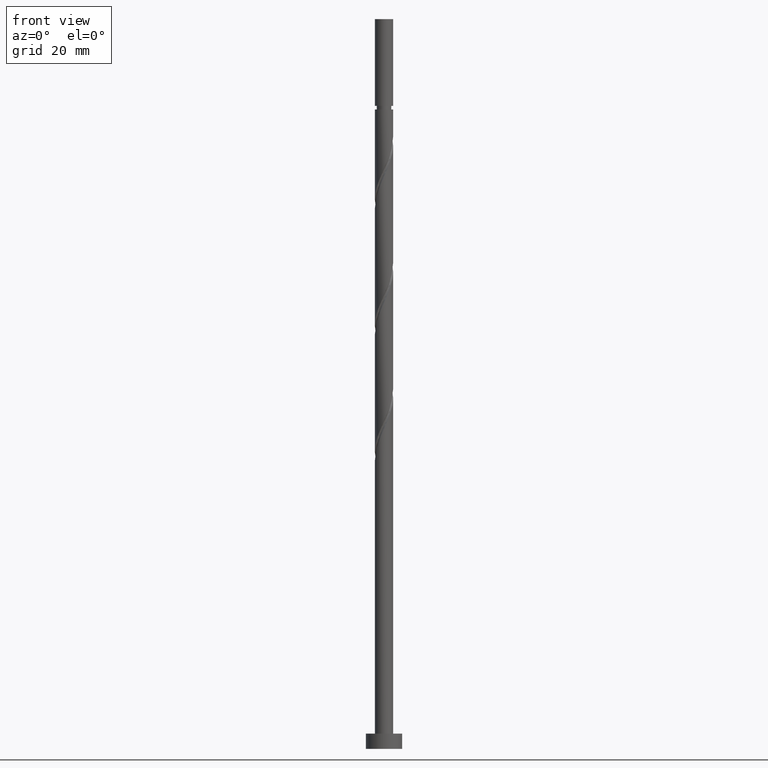
[diagram: clean part render]
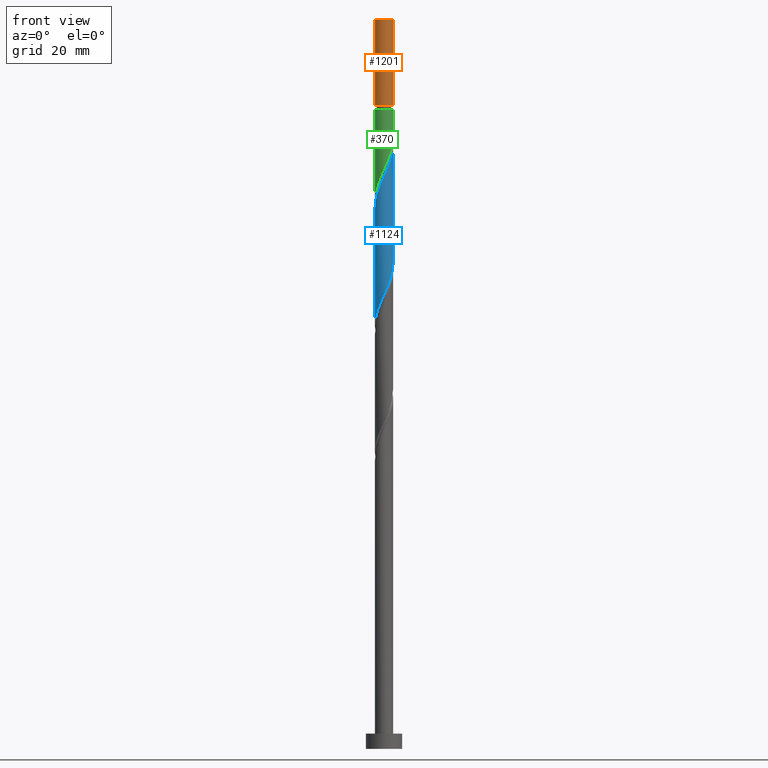
[diagram: same view with three faces highlighted in distinct colors, each labeled with its STEP entity id]
A machine part, front view with three faces highlighted in distinct colors.
Their STEP definitions:

[orange] entity #1201 — the highlighted cylindrical surface (edge-blend (fillet) strip) has radius 3 mm, axis along (-0, -0, -1).
#16 = EDGE_CURVE ( 'NONE', #412, #477, #1381, .T. ) ;
#38 = CARTESIAN_POINT ( 'NONE',  ( 2.999999999999987121, 3.673940397442051486E-16, 212.3750485588680306 ) ) ;
#115 = CARTESIAN_POINT ( 'NONE',  ( 3.000000000000000444, 3.673940397442060361E-16, 241.0000000000000000 ) ) ;
#125 = AXIS2_PLACEMENT_3D ( 'NONE', #269, #1414, #984 ) ;
#166 = LINE ( 'NONE', #565, #1184 ) ;
#213 = DIRECTION ( 'NONE',  ( 1.000000000000000000, 0.000000000000000000, 0.000000000000000000 ) ) ;
#217 = ORIENTED_EDGE ( 'NONE', *, *, #741, .F. ) ;
#258 = AXIS2_PLACEMENT_3D ( 'NONE', #1670, #263, #1799 ) ;
#263 = DIRECTION ( 'NONE',  ( -0.000000000000000000, -0.000000000000000000, -1.000000000000000000 ) ) ;
#268 = EDGE_CURVE ( 'NONE', #477, #1653, #1720, .T. ) ;
#269 = CARTESIAN_POINT ( 'NONE',  ( 0.000000000000000000, 0.000000000000000000, 212.3750485588680306 ) ) ;
#277 = ORIENTED_EDGE ( 'NONE', *, *, #1528, .T. ) ;
#364 = VECTOR ( 'NONE', #1802, 1000.000000000000000 ) ;
#412 = VERTEX_POINT ( 'NONE', #758 ) ;
#477 = VERTEX_POINT ( 'NONE', #38 ) ;
#565 = CARTESIAN_POINT ( 'NONE',  ( -3.000000000000000444, 0.000000000000000000, 241.0000000000000000 ) ) ;
#741 = EDGE_CURVE ( 'NONE', #1344, #412, #1241, .T. ) ;
#758 = CARTESIAN_POINT ( 'NONE',  ( 3.000000000000000444, 3.673940397442060361E-16, 241.0000000000000000 ) ) ;
#893 = DIRECTION ( 'NONE',  ( -0.000000000000000000, -0.000000000000000000, -1.000000000000000000 ) ) ;
#952 = CYLINDRICAL_SURFACE ( 'NONE', #258, 3.000000000000000444 ) ;
#984 = DIRECTION ( 'NONE',  ( -1.000000000000000000, 0.000000000000000000, 0.000000000000000000 ) ) ;
#1037 = AXIS2_PLACEMENT_3D ( 'NONE', #1207, #1493, #213 ) ;
#1184 = VECTOR ( 'NONE', #893, 1000.000000000000000 ) ;
#1201 = ADVANCED_FACE ( 'NONE', ( #1652 ), #952, .T. ) ;
#1202 = CARTESIAN_POINT ( 'NONE',  ( -2.999999999999987121, 0.000000000000000000, 212.3750485588680306 ) ) ;
#1207 = CARTESIAN_POINT ( 'NONE',  ( 0.000000000000000000, 0.000000000000000000, 241.0000000000000000 ) ) ;
#1241 = CIRCLE ( 'NONE', #1037, 3.000000000000000444 ) ;
#1344 = VERTEX_POINT ( 'NONE', #1509 ) ;
#1381 = LINE ( 'NONE', #115, #364 ) ;
#1414 = DIRECTION ( 'NONE',  ( -0.000000000000000000, -0.000000000000000000, -1.000000000000000000 ) ) ;
#1493 = DIRECTION ( 'NONE',  ( 0.000000000000000000, 0.000000000000000000, 1.000000000000000000 ) ) ;
#1509 = CARTESIAN_POINT ( 'NONE',  ( -3.000000000000000444, 0.000000000000000000, 241.0000000000000000 ) ) ;
#1528 = EDGE_CURVE ( 'NONE', #1344, #1653, #166, .T. ) ;
#1535 = EDGE_LOOP ( 'NONE', ( #1658, #217, #277, #1760 ) ) ;
#1652 = FACE_OUTER_BOUND ( 'NONE', #1535, .T. ) ;
#1653 = VERTEX_POINT ( 'NONE', #1202 ) ;
#1658 = ORIENTED_EDGE ( 'NONE', *, *, #16, .F. ) ;
#1670 = CARTESIAN_POINT ( 'NONE',  ( 0.000000000000000000, 0.000000000000000000, 241.0000000000000000 ) ) ;
#1720 = CIRCLE ( 'NONE', #125, 2.999999999999987121 ) ;
#1760 = ORIENTED_EDGE ( 'NONE', *, *, #268, .F. ) ;
#1799 = DIRECTION ( 'NONE',  ( -1.000000000000000000, 0.000000000000000000, 0.000000000000000000 ) ) ;
#1802 = DIRECTION ( 'NONE',  ( -0.000000000000000000, -0.000000000000000000, -1.000000000000000000 ) ) ;

[blue] entity #1124 — the highlighted cylindrical surface (edge-blend (fillet) strip) has radius 3 mm, axis along (-0, -0, -1).
#40 = CARTESIAN_POINT ( 'NONE',  ( 1.612492905673893251, -2.555886599839288120, 192.7455613793808311 ) ) ;
#59 = DIRECTION ( 'NONE',  ( -0.000000000000000000, -0.000000000000000000, -1.000000000000000000 ) ) ;
#65 = CARTESIAN_POINT ( 'NONE',  ( -2.901834587494009909, -0.8438280090812978473, 141.4635100973295039 ) ) ;
#76 = CARTESIAN_POINT ( 'NONE',  ( 1.894896698789863887, -2.325804484670908945, 193.5468434306629035 ) ) ;
#183 = CARTESIAN_POINT ( 'NONE',  ( 2.177300491905832747, -2.095722369502527993, 194.3481254819449191 ) ) ;
#192 = CYLINDRICAL_SURFACE ( 'NONE', #1564, 3.000000000000000444 ) ;
#199 = CARTESIAN_POINT ( 'NONE',  ( -3.000000000000004441, -0.1193193910103094585, 178.8612975986091271 ) ) ;
#218 = CARTESIAN_POINT ( 'NONE',  ( -1.502725340646227092, -2.596500828149244988, 185.5340229178424352 ) ) ;
#242 = CARTESIAN_POINT ( 'NONE',  ( 3.000000000000003997, -0.2437693156111407355, 198.8907592789610987 ) ) ;
#252 = CARTESIAN_POINT ( 'NONE',  ( 3.000000000000004441, 2.422862042392428676E-15, 199.4304600163094676 ) ) ;
#283 = CARTESIAN_POINT ( 'NONE',  ( 0.1239431067051828816, -2.997438590913959366, 150.2776126614321015 ) ) ;
#292 = CARTESIAN_POINT ( 'NONE',  ( -1.612492905673892807, -2.555886599839282347, 146.2712024050218247 ) ) ;
#330 = CARTESIAN_POINT ( 'NONE',  ( -2.080442193850960297, -2.161425519892978375, 183.9314588152783188 ) ) ;
#348 = EDGE_CURVE ( 'NONE', #1135, #1563, #966, .T. ) ;
#362 = CARTESIAN_POINT ( 'NONE',  ( -0.4878980450008971181, -2.982389173091093859, 187.9378690716884819 ) ) ;
#374 = VERTEX_POINT ( 'NONE', #831 ) ;
#397 = CARTESIAN_POINT ( 'NONE',  ( -3.000000000000004441, -2.826672382791166394E-15, 178.5971266829761248 ) ) ;
#400 = VERTEX_POINT ( 'NONE', #397 ) ;
#430 = CARTESIAN_POINT ( 'NONE',  ( 2.080442193850956301, -2.161425519892975267, 155.0853049691243655 ) ) ;
#440 = CARTESIAN_POINT ( 'NONE',  ( 1.817997620638345024, -2.414036937049628850, 154.2840229178423783 ) ) ;
#449 = CARTESIAN_POINT ( 'NONE',  ( 2.846604600309526667, -0.9470175550097449380, 158.2904331742526267 ) ) ;
#452 = LINE ( 'NONE', #1438, #1387 ) ;
#478 = CARTESIAN_POINT ( 'NONE',  ( -2.999999999999999556, -5.758036335315384076E-15, 139.5863037680931882 ) ) ;
#543 = CARTESIAN_POINT ( 'NONE',  ( 2.960644198141486605, -0.4843407189274824831, 198.3545357383551959 ) ) ;
#601 = CARTESIAN_POINT ( 'NONE',  ( 2.961593349985107260, -0.6013771789905507648, 159.0917152255346423 ) ) ;
#612 = CARTESIAN_POINT ( 'NONE',  ( 2.615571287713478466, -1.513762372691146885, 195.9506895845090355 ) ) ;
#648 = DIRECTION ( 'NONE',  ( -1.000000000000000000, 0.000000000000000000, 0.000000000000000000 ) ) ;
#715 = CARTESIAN_POINT ( 'NONE',  ( -0.9539730929374202750, -2.867511991263166582, 147.8737665075859411 ) ) ;
#742 = CARTESIAN_POINT ( 'NONE',  ( 2.999999999999999112, -0.1193193910103120259, 160.1554661857935002 ) ) ;
#760 = CARTESIAN_POINT ( 'NONE',  ( 2.758702937603747074, -1.178795190886223754, 196.7519716357910795 ) ) ;
#772 = CARTESIAN_POINT ( 'NONE',  ( -2.960644198141480388, -0.4843407189274797631, 140.6622280460474599 ) ) ;
#774 = CARTESIAN_POINT ( 'NONE',  ( 0.000000000000000000, 0.000000000000000000, 241.0000000000000000 ) ) ;
#780 = CARTESIAN_POINT ( 'NONE',  ( 2.396435889809654718, -1.804742371096837772, 195.1494075332270768 ) ) ;
#786 = CARTESIAN_POINT ( 'NONE',  ( -2.961593349985112145, -0.6013771789905507648, 179.9250485588679851 ) ) ;
#831 = CARTESIAN_POINT ( 'NONE',  ( -2.999999999999999556, -5.758036335315384076E-15, 139.5863037680931882 ) ) ;
#847 =( BOUNDED_CURVE ( )  B_SPLINE_CURVE ( 2, ( #1454, #742, #866, #601, #449, #1021, #1130, #1687, #430, #440, #1004, #995, #1012, #1555, #283, #855, #1416, #715, #1562, #292, #1425, #1287, #1761, #1179, #1040, #65, #772, #1767, #478 ),
 .UNSPECIFIED., .F., .T. ) 
 B_SPLINE_CURVE_WITH_KNOTS ( ( 3, 2, 2, 2, 2, 2, 2, 2, 2, 2, 2, 2, 2, 2, 3 ),
 ( 0.5545271625973834384, 0.5576923076923077094, 0.5673076923076922906, 0.5769230769230768718, 0.5865384615384615641, 0.5961538461538461453, 0.6057692307692307265, 0.6153846153846154188, 0.6250000000000000000, 0.6346153846153845812, 0.6442307692307692735, 0.6538461538461538547, 0.6634615384615384359, 0.6730769230769231282, 0.6795271625973834384 ),
 .UNSPECIFIED. ) 
 CURVE ( )  GEOMETRIC_REPRESENTATION_ITEM ( )  RATIONAL_B_SPLINE_CURVE ( ( 0.9061636035682816281, 0.9069090390690703885, 0.9090909090909268242, 0.9024626128164302541, 0.9090909090909268242, 0.9024626128164302541, 0.9090909090909268242, 0.9024626128164302541, 0.9090909090909268242, 0.9024626128164302541, 0.9090909090909268242, 0.9024626128164302541, 0.9090909090909268242, 0.9024626128164302541, 0.9090909090909268242, 0.9024626128164302541, 0.9090909090909268242, 0.9024626128164302541, 0.9090909090909268242, 0.9024626128164302541, 0.9090909090909268242, 0.9024626128164302541, 0.9090909090909268242, 0.9024626128164302541, 0.9090909090909268242, 0.9024626128164302541, 0.9090909090909268242, 0.9046444828382866898, 0.9061636035682816281 ) ) 
 REPRESENTATION_ITEM ( '' )  );
#855 = CARTESIAN_POINT ( 'NONE',  ( -0.2400118315905278299, -3.012488008736831979, 149.4763306101500291 ) ) ;
#866 = CARTESIAN_POINT ( 'NONE',  ( 2.990523579387029507, -0.2382618751084461528, 159.8929972768166579 ) ) ;
#869 = ORIENTED_EDGE ( 'NONE', *, *, #960, .T. ) ;
#921 = CARTESIAN_POINT ( 'NONE',  ( 0.2400118315905257205, -3.012488008736836864, 189.5404331742526267 ) ) ;
#939 = CARTESIAN_POINT ( 'NONE',  ( 2.999999999999999556, 4.531649375585873091E-15, 160.4196371014264741 ) ) ;
#960 = EDGE_CURVE ( 'NONE', #400, #374, #452, .T. ) ;
#966 = LINE ( 'NONE', #1522, #1227 ) ;
#995 = CARTESIAN_POINT ( 'NONE',  ( 1.187453060654100057, -2.778964719248851800, 152.6814588152782619 ) ) ;
#1004 = CARTESIAN_POINT ( 'NONE',  ( 1.502725340646222207, -2.596500828149240991, 153.4827408665603343 ) ) ;
#1012 = CARTESIAN_POINT ( 'NONE',  ( 0.8376755528274977269, -2.880676946169970165, 151.8801767639962179 ) ) ;
#1021 = CARTESIAN_POINT ( 'NONE',  ( 2.731615850633948295, -1.292657931028936558, 157.4891511229705543 ) ) ;
#1040 = CARTESIAN_POINT ( 'NONE',  ( -2.758702937603741745, -1.178795190886219979, 142.2647921486116047 ) ) ;
#1056 = CARTESIAN_POINT ( 'NONE',  ( -2.342886767063571796, -1.908814102736324125, 183.1301767639962748 ) ) ;
#1074 = CARTESIAN_POINT ( 'NONE',  ( -3.000000000000004441, -2.826672382791166394E-15, 178.5971266829761248 ) ) ;
#1111 = ORIENTED_EDGE ( 'NONE', *, *, #348, .F. ) ;
#1124 = ADVANCED_FACE ( 'NONE', ( #1627 ), #192, .T. ) ;
#1130 = CARTESIAN_POINT ( 'NONE',  ( 2.537251308848757159, -1.600736016882629675, 156.6878690716884819 ) ) ;
#1135 = VERTEX_POINT ( 'NONE', #1196 ) ;
#1179 = CARTESIAN_POINT ( 'NONE',  ( -2.615571287713475357, -1.513762372691142000, 143.0660741998936203 ) ) ;
#1195 = CARTESIAN_POINT ( 'NONE',  ( -1.817997620638349909, -2.414036937049631959, 184.7327408665603343 ) ) ;
#1196 = CARTESIAN_POINT ( 'NONE',  ( 3.000000000000004441, 2.422862042392428676E-15, 199.4304600163094676 ) ) ;
#1227 = VECTOR ( 'NONE', #1795, 1000.000000000000000 ) ;
#1230 = ORIENTED_EDGE ( 'NONE', *, *, #1554, .F. ) ;
#1287 = CARTESIAN_POINT ( 'NONE',  ( -2.177300491905830082, -2.095722369502523996, 144.6686383024577935 ) ) ;
#1310 = CARTESIAN_POINT ( 'NONE',  ( -0.8376755528275001694, -2.880676946169975494, 187.1365870204064663 ) ) ;
#1315 = DIRECTION ( 'NONE',  ( -0.000000000000000000, -0.000000000000000000, -1.000000000000000000 ) ) ;
#1338 = CARTESIAN_POINT ( 'NONE',  ( -0.1239431067051857543, -2.997438590913966028, 188.7391511229706396 ) ) ;
#1346 = CARTESIAN_POINT ( 'NONE',  ( 0.9539730929374193868, -2.867511991263172355, 191.1429972768167715 ) ) ;
#1386 = CARTESIAN_POINT ( 'NONE',  ( 2.901834587494015238, -0.8438280090813020662, 197.5532536870730951 ) ) ;
#1387 = VECTOR ( 'NONE', #1315, 1000.000000000000000 ) ;
#1416 = CARTESIAN_POINT ( 'NONE',  ( -0.5969924622639732892, -2.939999999999999503, 148.6750485588679851 ) ) ;
#1425 = CARTESIAN_POINT ( 'NONE',  ( -1.894896698789861000, -2.325804484670903172, 145.4699203537397807 ) ) ;
#1438 = CARTESIAN_POINT ( 'NONE',  ( -3.000000000000000444, 0.000000000000000000, 241.0000000000000000 ) ) ;
#1454 = CARTESIAN_POINT ( 'NONE',  ( 2.999999999999999556, 4.531649375585872302E-15, 160.4196371014264741 ) ) ;
#1471 = CARTESIAN_POINT ( 'NONE',  ( -2.990523579387033948, -0.2382618751084433495, 179.1237665075859979 ) ) ;
#1479 = CARTESIAN_POINT ( 'NONE',  ( 1.283232999305656596, -2.711699295551230904, 191.9442793280988155 ) ) ;
#1489 = CARTESIAN_POINT ( 'NONE',  ( -2.537251308848762932, -1.600736016882631008, 182.3288947127141739 ) ) ;
#1497 = CARTESIAN_POINT ( 'NONE',  ( -2.731615850633954068, -1.292657931028937890, 181.5276126614321015 ) ) ;
#1522 = CARTESIAN_POINT ( 'NONE',  ( 3.000000000000000444, 3.673940397442060361E-16, 241.0000000000000000 ) ) ;
#1554 = EDGE_CURVE ( 'NONE', #1563, #374, #847, .T. ) ;
#1555 = CARTESIAN_POINT ( 'NONE',  ( 0.4878980450008937320, -2.982389173091088530, 151.0788947127141739 ) ) ;
#1562 = CARTESIAN_POINT ( 'NONE',  ( -1.283232999305656152, -2.711699295551223798, 147.0724844563038971 ) ) ;
#1563 = VERTEX_POINT ( 'NONE', #939 ) ;
#1564 = AXIS2_PLACEMENT_3D ( 'NONE', #774, #59, #648 ) ;
#1616 = CARTESIAN_POINT ( 'NONE',  ( -1.187453060654103387, -2.778964719248856685, 186.3353049691244223 ) ) ;
#1627 = FACE_OUTER_BOUND ( 'NONE', #1759, .T. ) ;
#1632 = CARTESIAN_POINT ( 'NONE',  ( -2.846604600309533328, -0.9470175550097440498, 180.7263306101500575 ) ) ;
#1687 = CARTESIAN_POINT ( 'NONE',  ( 2.342886767063565578, -1.908814102736322793, 155.8865870204064663 ) ) ;
#1712 = EDGE_CURVE ( 'NONE', #400, #1135, #1734, .T. ) ;
#1734 =( BOUNDED_CURVE ( )  B_SPLINE_CURVE ( 2, ( #1074, #199, #1471, #786, #1632, #1497, #1489, #1056, #330, #1195, #218, #1616, #1310, #362, #1338, #921, #1753, #1346, #1479, #40, #76, #183, #780, #612, #760, #1386, #543, #242, #252 ),
 .UNSPECIFIED., .F., .T. ) 
 B_SPLINE_CURVE_WITH_KNOTS ( ( 3, 2, 2, 2, 2, 2, 2, 2, 2, 2, 2, 2, 2, 2, 3 ),
 ( 0.5545271625973834384, 0.5576923076923077094, 0.5673076923076922906, 0.5769230769230768718, 0.5865384615384615641, 0.5961538461538461453, 0.6057692307692308376, 0.6153846153846154188, 0.6250000000000000000, 0.6346153846153845812, 0.6442307692307691624, 0.6538461538461538547, 0.6634615384615384359, 0.6730769230769231282, 0.6795271625973832164 ),
 .UNSPECIFIED. ) 
 CURVE ( )  GEOMETRIC_REPRESENTATION_ITEM ( )  RATIONAL_B_SPLINE_CURVE ( ( 0.9061636035682882895, 0.9069090390690770498, 0.9090909090909334855, 0.9024626128164370265, 0.9090909090909334855, 0.9024626128164370265, 0.9090909090909334855, 0.9024626128164370265, 0.9090909090909334855, 0.9024626128164370265, 0.9090909090909334855, 0.9024626128164370265, 0.9090909090909334855, 0.9024626128164370265, 0.9090909090909334855, 0.9024626128164370265, 0.9090909090909334855, 0.9024626128164370265, 0.9090909090909334855, 0.9024626128164370265, 0.9090909090909334855, 0.9024626128164370265, 0.9090909090909334855, 0.9024626128164370265, 0.9090909090909334855, 0.9024626128164370265, 0.9090909090909334855, 0.9046444828382936842, 0.9061636035682882895 ) ) 
 REPRESENTATION_ITEM ( '' )  );
#1753 = CARTESIAN_POINT ( 'NONE',  ( 0.5969924622639735112, -2.940000000000004832, 190.3417152255346707 ) ) ;
#1759 = EDGE_LOOP ( 'NONE', ( #1111, #1792, #869, #1230 ) ) ;
#1761 = CARTESIAN_POINT ( 'NONE',  ( -2.396435889809652053, -1.804742371096832665, 143.8673562511756074 ) ) ;
#1767 = CARTESIAN_POINT ( 'NONE',  ( -3.000000000000000888, -0.2437693156111310211, 140.1260045054415855 ) ) ;
#1792 = ORIENTED_EDGE ( 'NONE', *, *, #1712, .F. ) ;
#1795 = DIRECTION ( 'NONE',  ( -0.000000000000000000, -0.000000000000000000, -1.000000000000000000 ) ) ;

[green] entity #370 — the highlighted cylindrical surface (edge-blend (fillet) strip) has radius 3 mm, axis along (-0, -0, -1).
#7 = VERTEX_POINT ( 'NONE', #246 ) ;
#24 = CARTESIAN_POINT ( 'NONE',  ( -2.960644198141480388, -0.4843407189274797631, 182.3288947127141455 ) ) ;
#31 = ORIENTED_EDGE ( 'NONE', *, *, #570, .T. ) ;
#43 = EDGE_CURVE ( 'NONE', #994, #883, #538, .T. ) ;
#50 = CIRCLE ( 'NONE', #707, 2.999999999999987121 ) ;
#99 = AXIS2_PLACEMENT_3D ( 'NONE', #1405, #1806, #1543 ) ;
#109 = FACE_OUTER_BOUND ( 'NONE', #177, .T. ) ;
#136 = CARTESIAN_POINT ( 'NONE',  ( 3.000000000000000000, -1.076827574396642921E-15, 202.0863037680932450 ) ) ;
#177 = EDGE_LOOP ( 'NONE', ( #1368, #31, #940, #735 ) ) ;
#237 = CARTESIAN_POINT ( 'NONE',  ( 2.731615850633948295, -1.292657931028936558, 199.1558177896372399 ) ) ;
#246 = CARTESIAN_POINT ( 'NONE',  ( -2.999999999999987121, 0.000000000000000000, 211.1750485588680135 ) ) ;
#256 = CARTESIAN_POINT ( 'NONE',  ( -2.396435889809652053, -1.804742371096832665, 185.5340229178423499 ) ) ;
#273 = LINE ( 'NONE', #675, #561 ) ;
#278 = CARTESIAN_POINT ( 'NONE',  ( 2.537251308848757159, -1.600736016882629675, 198.3545357383551391 ) ) ;
#301 = DIRECTION ( 'NONE',  ( -0.000000000000000000, -0.000000000000000000, -1.000000000000000000 ) ) ;
#306 = CARTESIAN_POINT ( 'NONE',  ( -3.000000000000000000, -1.794712623994405526E-16, 181.2529704347598738 ) ) ;
#370 = ADVANCED_FACE ( 'NONE', ( #109 ), #863, .T. ) ;
#386 = CARTESIAN_POINT ( 'NONE',  ( -2.177300491905830082, -2.095722369502523996, 186.3353049691244507 ) ) ;
#394 = CARTESIAN_POINT ( 'NONE',  ( 0.1239431067051828816, -2.997438590913959366, 191.9442793280987019 ) ) ;
#401 = CARTESIAN_POINT ( 'NONE',  ( -3.000000000000000000, -1.794712623994405280E-16, 181.2529704347598738 ) ) ;
#530 = CARTESIAN_POINT ( 'NONE',  ( 0.4878980450008937320, -2.982389173091088530, 192.7455613793808311 ) ) ;
#538 = LINE ( 'NONE', #1254, #664 ) ;
#539 = CARTESIAN_POINT ( 'NONE',  ( 1.817997620638345024, -2.414036937049628850, 195.9506895845090071 ) ) ;
#561 = VECTOR ( 'NONE', #1242, 1000.000000000000000 ) ;
#570 = EDGE_CURVE ( 'NONE', #994, #7, #50, .T. ) ;
#589 = DIRECTION ( 'NONE',  ( -1.000000000000000000, 0.000000000000000000, 0.000000000000000000 ) ) ;
#664 = VECTOR ( 'NONE', #837, 1000.000000000000000 ) ;
#675 = CARTESIAN_POINT ( 'NONE',  ( -3.000000000000000444, 0.000000000000000000, 241.0000000000000000 ) ) ;
#699 = CARTESIAN_POINT ( 'NONE',  ( 2.342886767063565578, -1.908814102736322793, 197.5532536870730951 ) ) ;
#707 = AXIS2_PLACEMENT_3D ( 'NONE', #1175, #301, #589 ) ;
#735 = ORIENTED_EDGE ( 'NONE', *, *, #933, .F. ) ;
#746 = CARTESIAN_POINT ( 'NONE',  ( -2.999999999999997335, -0.2437693156111469250, 181.7926711721081858 ) ) ;
#811 = CARTESIAN_POINT ( 'NONE',  ( 1.502725340646222207, -2.596500828149240991, 195.1494075332269915 ) ) ;
#820 = CARTESIAN_POINT ( 'NONE',  ( -2.758702937603741745, -1.178795190886219979, 183.9314588152782619 ) ) ;
#837 = DIRECTION ( 'NONE',  ( -0.000000000000000000, -0.000000000000000000, -1.000000000000000000 ) ) ;
#850 = CARTESIAN_POINT ( 'NONE',  ( 1.187453060654100057, -2.778964719248851800, 194.3481254819449759 ) ) ;
#863 = CYLINDRICAL_SURFACE ( 'NONE', #99, 3.000000000000000444 ) ;
#883 = VERTEX_POINT ( 'NONE', #1512 ) ;
#933 = EDGE_CURVE ( 'NONE', #883, #1257, #1553, .T. ) ;
#940 = ORIENTED_EDGE ( 'NONE', *, *, #1171, .T. ) ;
#972 = CARTESIAN_POINT ( 'NONE',  ( -0.2400118315905278299, -3.012488008736831979, 191.1429972768166579 ) ) ;
#990 = CARTESIAN_POINT ( 'NONE',  ( 2.961593349985107260, -0.6013771789905507648, 200.7583818922014132 ) ) ;
#994 = VERTEX_POINT ( 'NONE', #1153 ) ;
#1097 = CARTESIAN_POINT ( 'NONE',  ( -1.612492905673892807, -2.555886599839282347, 187.9378690716885103 ) ) ;
#1106 = CARTESIAN_POINT ( 'NONE',  ( 2.990523579387029507, -0.2382618751084461528, 201.5596639434833719 ) ) ;
#1153 = CARTESIAN_POINT ( 'NONE',  ( 2.999999999999987121, 3.673940397442051486E-16, 211.1750485588680135 ) ) ;
#1171 = EDGE_CURVE ( 'NONE', #7, #1257, #273, .T. ) ;
#1175 = CARTESIAN_POINT ( 'NONE',  ( 0.000000000000000000, 0.000000000000000000, 211.1750485588680135 ) ) ;
#1242 = DIRECTION ( 'NONE',  ( -0.000000000000000000, -0.000000000000000000, -1.000000000000000000 ) ) ;
#1254 = CARTESIAN_POINT ( 'NONE',  ( 3.000000000000000444, 3.673940397442060361E-16, 241.0000000000000000 ) ) ;
#1257 = VERTEX_POINT ( 'NONE', #401 ) ;
#1273 = CARTESIAN_POINT ( 'NONE',  ( -0.9539730929374202750, -2.867511991263166582, 189.5404331742526267 ) ) ;
#1368 = ORIENTED_EDGE ( 'NONE', *, *, #43, .F. ) ;
#1392 = CARTESIAN_POINT ( 'NONE',  ( -0.5969924622639732892, -2.939999999999999503, 190.3417152255346707 ) ) ;
#1403 = CARTESIAN_POINT ( 'NONE',  ( 3.000000000000000888, -0.1193193910103022976, 201.8221328524602427 ) ) ;
#1405 = CARTESIAN_POINT ( 'NONE',  ( 0.000000000000000000, 0.000000000000000000, 241.0000000000000000 ) ) ;
#1412 = CARTESIAN_POINT ( 'NONE',  ( 2.846604600309526667, -0.9470175550097449380, 199.9570998409193123 ) ) ;
#1512 = CARTESIAN_POINT ( 'NONE',  ( 3.000000000000000000, -1.076827574396643119E-15, 202.0863037680932166 ) ) ;
#1519 = CARTESIAN_POINT ( 'NONE',  ( -2.615571287713475357, -1.513762372691142000, 184.7327408665603343 ) ) ;
#1529 = CARTESIAN_POINT ( 'NONE',  ( -1.283232999305656152, -2.711699295551223798, 188.7391511229705259 ) ) ;
#1543 = DIRECTION ( 'NONE',  ( -1.000000000000000000, 0.000000000000000000, 0.000000000000000000 ) ) ;
#1553 =( BOUNDED_CURVE ( )  B_SPLINE_CURVE ( 2, ( #136, #1403, #1106, #990, #1412, #237, #278, #699, #1790, #539, #811, #850, #1666, #530, #394, #972, #1392, #1273, #1529, #1097, #1656, #386, #256, #1519, #820, #1567, #24, #746, #306 ),
 .UNSPECIFIED., .F., .T. ) 
 B_SPLINE_CURVE_WITH_KNOTS ( ( 3, 2, 2, 2, 2, 2, 2, 2, 2, 2, 2, 2, 2, 2, 3 ),
 ( 0.3045271625973831608, 0.3076923076923077094, 0.3173076923076922906, 0.3269230769230769273, 0.3365384615384615641, 0.3461538461538461453, 0.3557692307692307820, 0.3653846153846153633, 0.3750000000000000000, 0.3846153846153846367, 0.3942307692307692180, 0.4038461538461538547, 0.4134615384615384359, 0.4230769230769230727, 0.4295271625973829943 ),
 .UNSPECIFIED. ) 
 CURVE ( )  GEOMETRIC_REPRESENTATION_ITEM ( )  RATIONAL_B_SPLINE_CURVE ( ( 0.9061636035682815171, 0.9069090390690701664, 0.9090909090909268242, 0.9024626128164302541, 0.9090909090909268242, 0.9024626128164302541, 0.9090909090909268242, 0.9024626128164302541, 0.9090909090909268242, 0.9024626128164302541, 0.9090909090909268242, 0.9024626128164302541, 0.9090909090909268242, 0.9024626128164302541, 0.9090909090909268242, 0.9024626128164302541, 0.9090909090909268242, 0.9024626128164302541, 0.9090909090909268242, 0.9024626128164302541, 0.9090909090909268242, 0.9024626128164302541, 0.9090909090909268242, 0.9024626128164302541, 0.9090909090909268242, 0.9024626128164302541, 0.9090909090909268242, 0.9046444828382870229, 0.9061636035682814061 ) ) 
 REPRESENTATION_ITEM ( '' )  );
#1567 = CARTESIAN_POINT ( 'NONE',  ( -2.901834587494009909, -0.8438280090812978473, 183.1301767639962179 ) ) ;
#1656 = CARTESIAN_POINT ( 'NONE',  ( -1.894896698789861000, -2.325804484670903172, 187.1365870204064947 ) ) ;
#1666 = CARTESIAN_POINT ( 'NONE',  ( 0.8376755528274977269, -2.880676946169970165, 193.5468434306628751 ) ) ;
#1790 = CARTESIAN_POINT ( 'NONE',  ( 2.080442193850956301, -2.161425519892975267, 196.7519716357910227 ) ) ;
#1806 = DIRECTION ( 'NONE',  ( -0.000000000000000000, -0.000000000000000000, -1.000000000000000000 ) ) ;